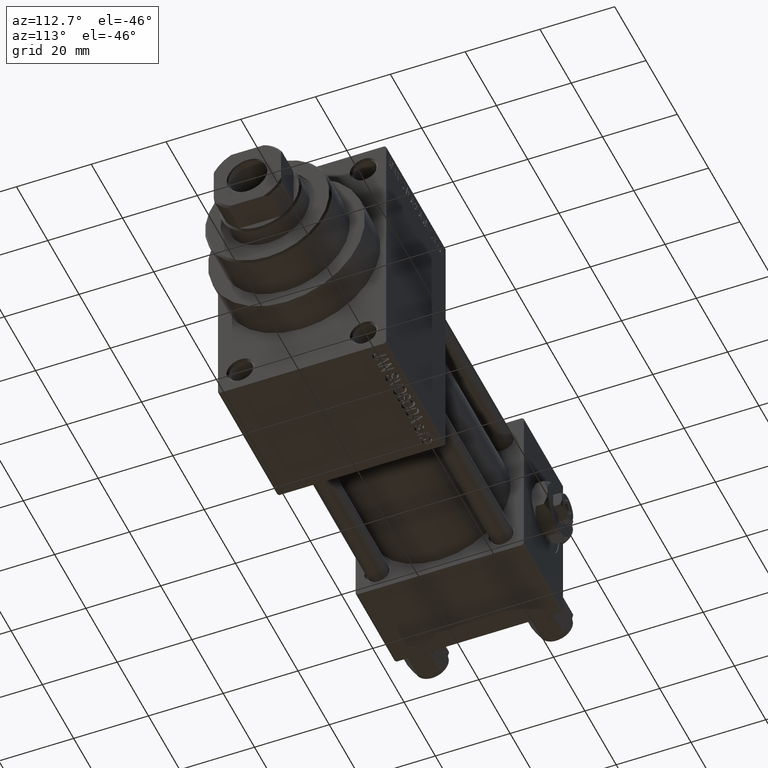
[diagram: clean part render]
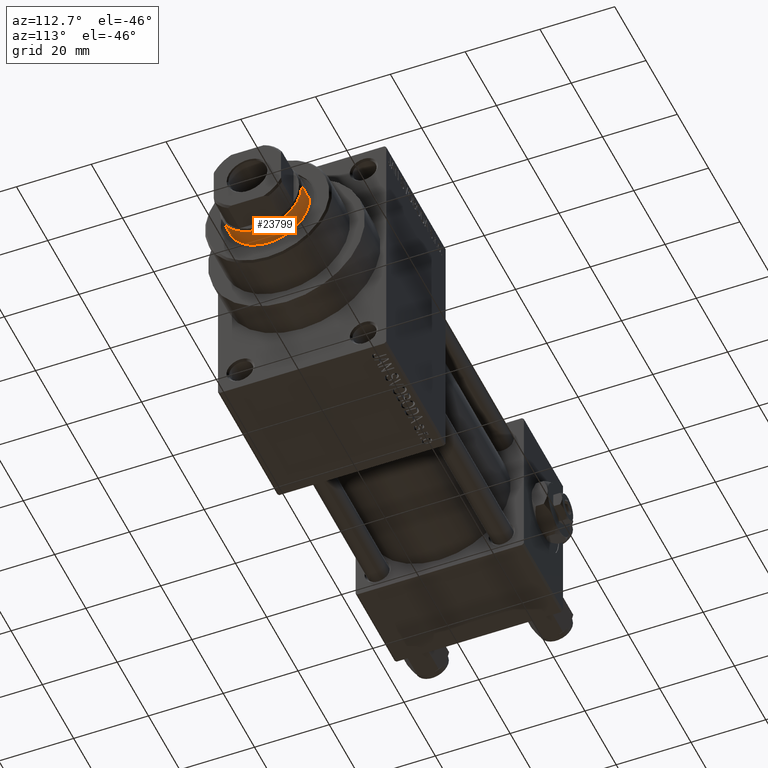
[diagram: same view with one face highlighted and labeled with its STEP entity id]
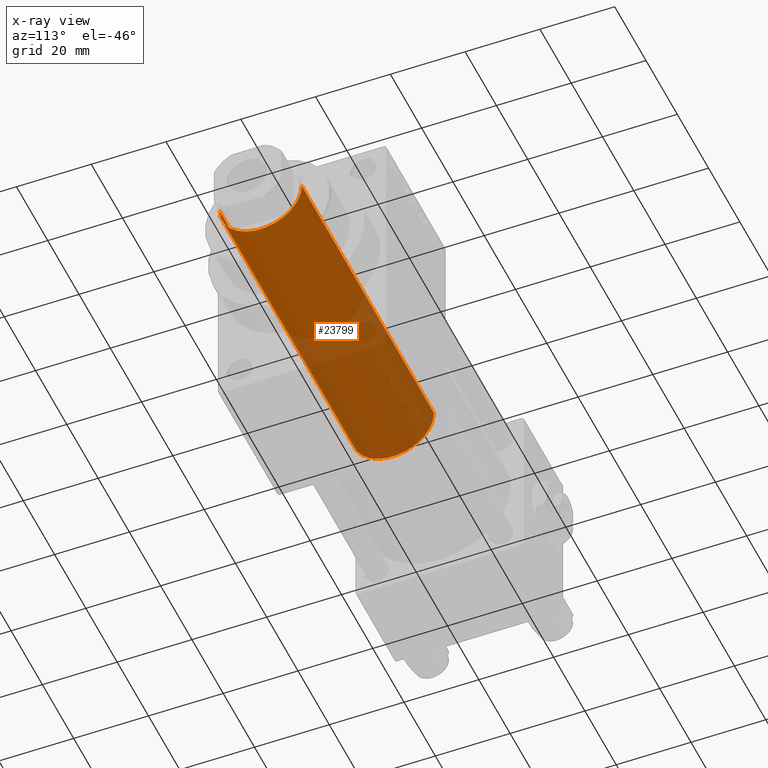
[diagram: x-ray of the same camera — body ghosted, the highlighted face saturated]
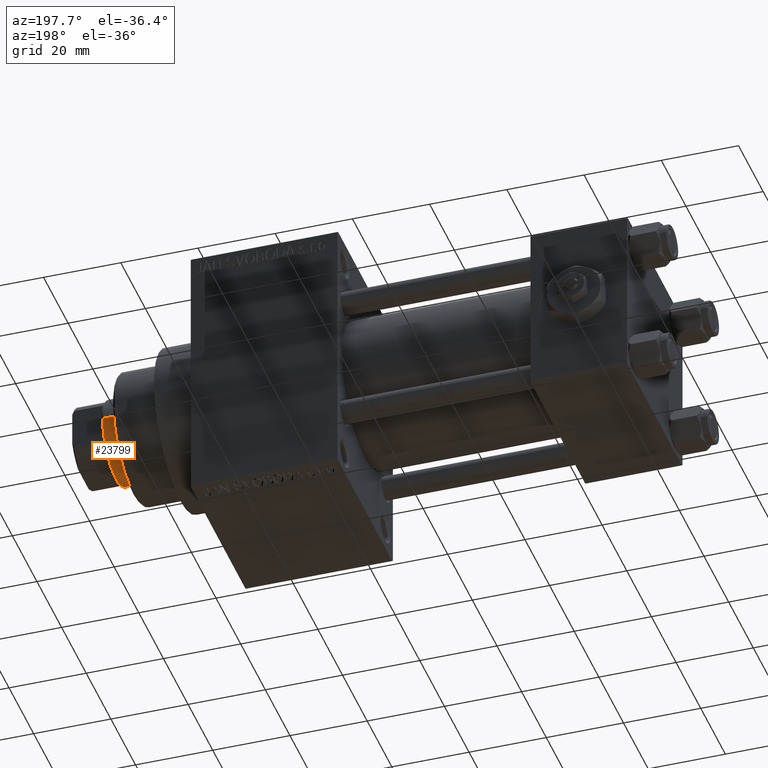
[diagram: same view with one face highlighted and labeled with its STEP entity id]
A machine part, auxiliary view. The second image highlights one B-rep face of the part: STEP entity #23799.
The next image is the same camera in x-ray: the body ghosted, the highlighted face saturated — about 53% of this face is hidden behind the body in this view.
A second angle (auxiliary view) of the same face is appended — the face is thin or edge-on in the first view.
In plain terms, the highlighted cylindrical surface (partial cylindrical patch) has radius 11 mm, axis along (-1, 0, 0).
Its self-contained STEP definition (entity closure, byte-faithful):
#1201 = DIRECTION ( 'NONE',  ( -0.000000000000000000, -0.000000000000000000, -1.000000000000000000 ) ) ;
#1634 = EDGE_CURVE ( 'NONE', #37179, #40933, #42697, .T. ) ;
#1820 = CARTESIAN_POINT ( 'NONE',  ( 11.00000000000000000, 1.347111479062088405E-15, 114.5000000000000142 ) ) ;
#2583 = DIRECTION ( 'NONE',  ( -0.000000000000000000, -0.000000000000000000, -1.000000000000000000 ) ) ;
#2728 = LINE ( 'NONE', #17792, #8718 ) ;
#2757 = DIRECTION ( 'NONE',  ( 1.000000000000000000, 0.000000000000000000, 0.000000000000000000 ) ) ;
#5739 = VERTEX_POINT ( 'NONE', #13464 ) ;
#5795 = CARTESIAN_POINT ( 'NONE',  ( 0.000000000000000000, 0.000000000000000000, 115.0000000000000000 ) ) ;
#8718 = VECTOR ( 'NONE', #47933, 1000.000000000000000 ) ;
#9747 = DIRECTION ( 'NONE',  ( -1.000000000000000000, 0.000000000000000000, 0.000000000000000000 ) ) ;
#9989 = FACE_OUTER_BOUND ( 'NONE', #31022, .T. ) ;
#10158 = CARTESIAN_POINT ( 'NONE',  ( 0.000000000000000000, 0.000000000000000000, 114.5000000000000142 ) ) ;
#12149 = EDGE_CURVE ( 'NONE', #13916, #37179, #41044, .T. ) ;
#13464 = CARTESIAN_POINT ( 'NONE',  ( -11.00000000000000000, 0.000000000000000000, 30.00000000000000000 ) ) ;
#13916 = VERTEX_POINT ( 'NONE', #38049 ) ;
#15778 = ORIENTED_EDGE ( 'NONE', *, *, #21522, .T. ) ;
#15962 = AXIS2_PLACEMENT_3D ( 'NONE', #31327, #34311, #26625 ) ;
#17792 = CARTESIAN_POINT ( 'NONE',  ( -11.00000000000000000, 0.000000000000000000, 115.0000000000000000 ) ) ;
#19045 = ORIENTED_EDGE ( 'NONE', *, *, #35578, .F. ) ;
#19763 = ORIENTED_EDGE ( 'NONE', *, *, #1634, .T. ) ;
#21347 = CYLINDRICAL_SURFACE ( 'NONE', #46777, 11.00000000000000000 ) ;
#21522 = EDGE_CURVE ( 'NONE', #40933, #5739, #42770, .T. ) ;
#23433 = VECTOR ( 'NONE', #1201, 1000.000000000000000 ) ;
#23799 = ADVANCED_FACE ( 'NONE', ( #9989 ), #21347, .T. ) ;
#26625 = DIRECTION ( 'NONE',  ( 1.000000000000000000, 0.000000000000000000, 0.000000000000000000 ) ) ;
#31022 = EDGE_LOOP ( 'NONE', ( #31687, #19763, #15778, #19045 ) ) ;
#31327 = CARTESIAN_POINT ( 'NONE',  ( 0.000000000000000000, 0.000000000000000000, 30.00000000000000000 ) ) ;
#31687 = ORIENTED_EDGE ( 'NONE', *, *, #12149, .T. ) ;
#32367 = AXIS2_PLACEMENT_3D ( 'NONE', #10158, #36611, #2757 ) ;
#34142 = CARTESIAN_POINT ( 'NONE',  ( 11.00000000000000000, 1.347111479062088405E-15, 30.00000000000000000 ) ) ;
#34311 = DIRECTION ( 'NONE',  ( 0.000000000000000000, 0.000000000000000000, 1.000000000000000000 ) ) ;
#35578 = EDGE_CURVE ( 'NONE', #13916, #5739, #2728, .T. ) ;
#36611 = DIRECTION ( 'NONE',  ( 0.000000000000000000, 0.000000000000000000, -1.000000000000000000 ) ) ;
#37179 = VERTEX_POINT ( 'NONE', #1820 ) ;
#38049 = CARTESIAN_POINT ( 'NONE',  ( -11.00000000000000000, 0.000000000000000000, 114.5000000000000142 ) ) ;
#40933 = VERTEX_POINT ( 'NONE', #34142 ) ;
#41044 = CIRCLE ( 'NONE', #32367, 11.00000000000000000 ) ;
#42452 = CARTESIAN_POINT ( 'NONE',  ( 11.00000000000000000, 1.347111479062088405E-15, 115.0000000000000000 ) ) ;
#42697 = LINE ( 'NONE', #42452, #23433 ) ;
#42770 = CIRCLE ( 'NONE', #15962, 11.00000000000000000 ) ;
#46777 = AXIS2_PLACEMENT_3D ( 'NONE', #5795, #2583, #9747 ) ;
#47933 = DIRECTION ( 'NONE',  ( -0.000000000000000000, -0.000000000000000000, -1.000000000000000000 ) ) ;